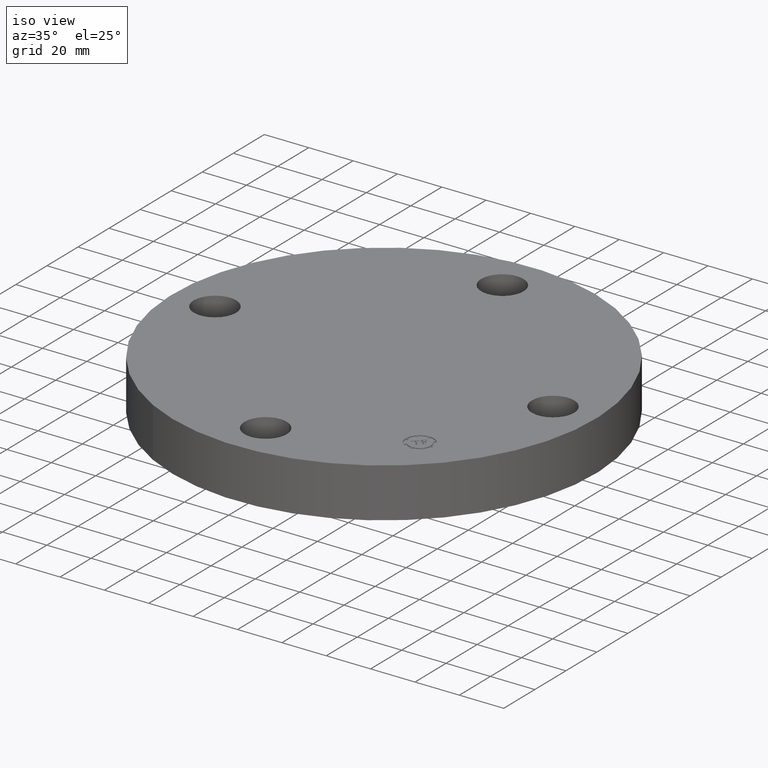
[diagram: clean part render]
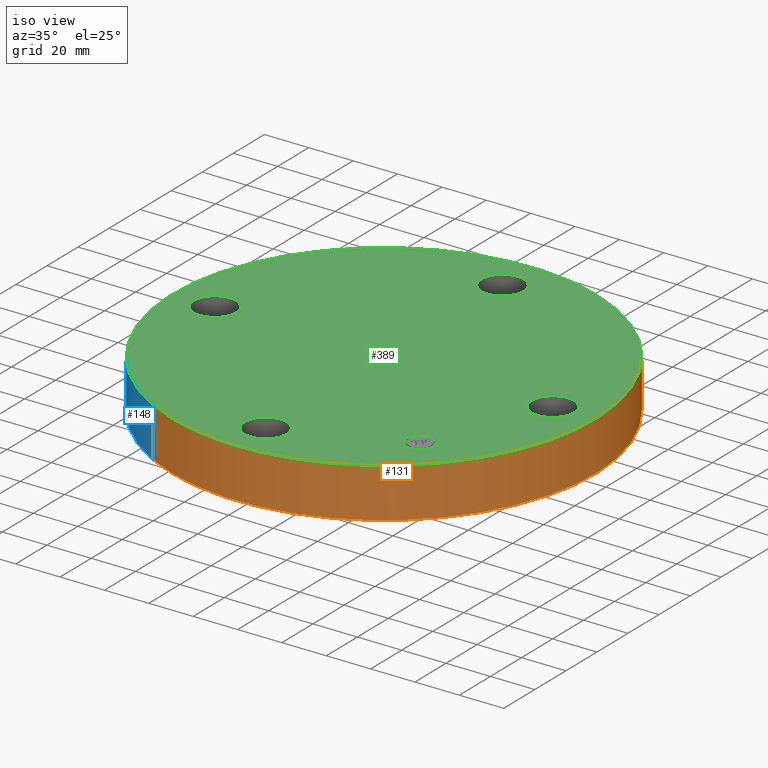
[diagram: same view with three faces highlighted in distinct colors, each labeled with its STEP entity id]
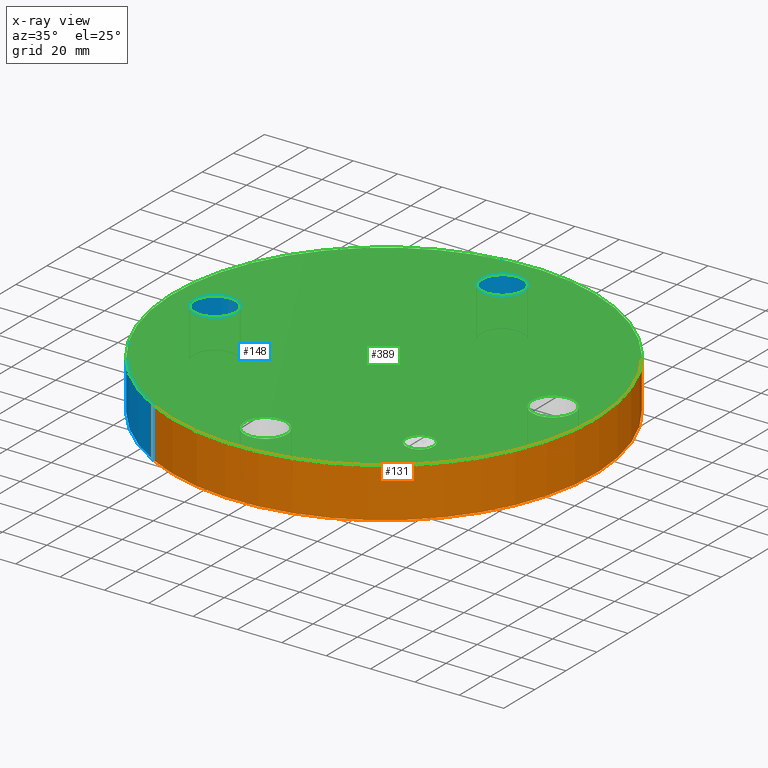
[diagram: x-ray of the same camera — body ghosted, the three highlighted faces saturated]
A machine part, iso view with three faces highlighted in distinct colors.
The next image is the same camera in x-ray (body ghosted, the three faces saturated) — at least one of them is partly hidden behind the body in this view.
Their STEP definitions:

[orange] entity #131 — the highlighted cylindrical surface (partial cylindrical patch) has radius 95.25 mm, axis along (0, 0, -1).
#95=AXIS2_PLACEMENT_3D('Cylinder Axis2P3D',#92,#93,#94) ;
#99=AXIS2_PLACEMENT_3D('Circle Axis2P3D',#97,#98,$) ;
#115=AXIS2_PLACEMENT_3D('Circle Axis2P3D',#113,#114,$) ;
#92=CARTESIAN_POINT('Axis2P3D Location',(0.,0.,0.440000000002)) ;
#97=CARTESIAN_POINT('Axis2P3D Location',(0.,0.,4.19611851827E-016)) ;
#101=CARTESIAN_POINT('Vertex',(1.79784576977,3.2909346071,4.19611851827E-016)) ;
#103=CARTESIAN_POINT('Vertex',(-1.79784576977,-3.2909346071,4.19611851827E-016)) ;
#106=CARTESIAN_POINT('Line Origine',(1.79784576977,3.2909346071,0.440000000002)) ;
#110=CARTESIAN_POINT('Vertex',(1.79784576977,3.2909346071,0.880000000004)) ;
#113=CARTESIAN_POINT('Axis2P3D Location',(0.,0.,0.880000000004)) ;
#117=CARTESIAN_POINT('Vertex',(-1.79784576977,-3.2909346071,0.880000000004)) ;
#120=CARTESIAN_POINT('Line Origine',(-1.79784576977,-3.2909346071,0.440000000002)) ;
#93=DIRECTION('Axis2P3D Direction',(0.,0.,-0.0393700787402)) ;
#94=DIRECTION('Axis2P3D XDirection',(-0.0188750212049,-0.0345504945626,0.)) ;
#98=DIRECTION('Axis2P3D Direction',(0.,0.,-0.0393700787402)) ;
#107=DIRECTION('Vector Direction',(0.,0.,-0.0393700787402)) ;
#114=DIRECTION('Axis2P3D Direction',(0.,0.,-0.0393700787402)) ;
#121=DIRECTION('Vector Direction',(0.,0.,-0.0393700787402)) ;
#108=VECTOR('Line Direction',#107,0.0393700787402) ;
#122=VECTOR('Line Direction',#121,0.0393700787402) ;
#126=ORIENTED_EDGE('',*,*,#105,.F.) ;
#127=ORIENTED_EDGE('',*,*,#112,.T.) ;
#128=ORIENTED_EDGE('',*,*,#119,.T.) ;
#129=ORIENTED_EDGE('',*,*,#124,.F.) ;
#131=ADVANCED_FACE('PartBody',(#130),#96,.T.) ;
#100=CIRCLE('generated circle',#99,3.75000000002) ;
#116=CIRCLE('generated circle',#115,3.75000000002) ;
#96=CYLINDRICAL_SURFACE('generated cylinder',#95,3.75000000002) ;
#105=EDGE_CURVE('',#102,#104,#100,.T.) ;
#112=EDGE_CURVE('',#102,#111,#109,.F.) ;
#119=EDGE_CURVE('',#111,#118,#116,.T.) ;
#124=EDGE_CURVE('',#104,#118,#123,.F.) ;
#125=EDGE_LOOP('',(#126,#127,#128,#129)) ;
#130=FACE_OUTER_BOUND('',#125,.T.) ;
#109=LINE('Line',#106,#108) ;
#123=LINE('Line',#120,#122) ;
#102=VERTEX_POINT('',#101) ;
#104=VERTEX_POINT('',#103) ;
#111=VERTEX_POINT('',#110) ;
#118=VERTEX_POINT('',#117) ;

[blue] entity #148 — the highlighted cylindrical surface (partial cylindrical patch) has radius 95.25 mm, axis along (0, 0, -1).
#95=AXIS2_PLACEMENT_3D('Cylinder Axis2P3D',#92,#93,#94) ;
#134=AXIS2_PLACEMENT_3D('Circle Axis2P3D',#132,#133,$) ;
#139=AXIS2_PLACEMENT_3D('Circle Axis2P3D',#137,#138,$) ;
#92=CARTESIAN_POINT('Axis2P3D Location',(0.,0.,0.440000000002)) ;
#101=CARTESIAN_POINT('Vertex',(1.79784576977,3.2909346071,4.19611851827E-016)) ;
#103=CARTESIAN_POINT('Vertex',(-1.79784576977,-3.2909346071,4.19611851827E-016)) ;
#106=CARTESIAN_POINT('Line Origine',(1.79784576977,3.2909346071,0.440000000002)) ;
#110=CARTESIAN_POINT('Vertex',(1.79784576977,3.2909346071,0.880000000004)) ;
#117=CARTESIAN_POINT('Vertex',(-1.79784576977,-3.2909346071,0.880000000004)) ;
#120=CARTESIAN_POINT('Line Origine',(-1.79784576977,-3.2909346071,0.440000000002)) ;
#132=CARTESIAN_POINT('Axis2P3D Location',(0.,0.,4.19611851827E-016)) ;
#137=CARTESIAN_POINT('Axis2P3D Location',(0.,0.,0.880000000004)) ;
#93=DIRECTION('Axis2P3D Direction',(0.,0.,-0.0393700787402)) ;
#94=DIRECTION('Axis2P3D XDirection',(-0.0188750212049,-0.0345504945626,0.)) ;
#107=DIRECTION('Vector Direction',(0.,0.,-0.0393700787402)) ;
#121=DIRECTION('Vector Direction',(0.,0.,-0.0393700787402)) ;
#133=DIRECTION('Axis2P3D Direction',(0.,0.,-0.0393700787402)) ;
#138=DIRECTION('Axis2P3D Direction',(0.,0.,-0.0393700787402)) ;
#108=VECTOR('Line Direction',#107,0.0393700787402) ;
#122=VECTOR('Line Direction',#121,0.0393700787402) ;
#143=ORIENTED_EDGE('',*,*,#136,.F.) ;
#144=ORIENTED_EDGE('',*,*,#124,.T.) ;
#145=ORIENTED_EDGE('',*,*,#141,.T.) ;
#146=ORIENTED_EDGE('',*,*,#112,.F.) ;
#148=ADVANCED_FACE('PartBody',(#147),#96,.T.) ;
#135=CIRCLE('generated circle',#134,3.75000000002) ;
#140=CIRCLE('generated circle',#139,3.75000000002) ;
#96=CYLINDRICAL_SURFACE('generated cylinder',#95,3.75000000002) ;
#112=EDGE_CURVE('',#102,#111,#109,.F.) ;
#124=EDGE_CURVE('',#104,#118,#123,.F.) ;
#136=EDGE_CURVE('',#104,#102,#135,.T.) ;
#141=EDGE_CURVE('',#118,#111,#140,.T.) ;
#142=EDGE_LOOP('',(#143,#144,#145,#146)) ;
#147=FACE_OUTER_BOUND('',#142,.T.) ;
#109=LINE('Line',#106,#108) ;
#123=LINE('Line',#120,#122) ;
#102=VERTEX_POINT('',#101) ;
#104=VERTEX_POINT('',#103) ;
#111=VERTEX_POINT('',#110) ;
#118=VERTEX_POINT('',#117) ;

[green] entity #389 — the highlighted planar face has unit normal (0, 0, -1).
#65=AXIS2_PLACEMENT_3D('Circle Axis2P3D',#63,#64,$) ;
#82=AXIS2_PLACEMENT_3D('Circle Axis2P3D',#80,#81,$) ;
#115=AXIS2_PLACEMENT_3D('Circle Axis2P3D',#113,#114,$) ;
#139=AXIS2_PLACEMENT_3D('Circle Axis2P3D',#137,#138,$) ;
#238=AXIS2_PLACEMENT_3D('Circle Axis2P3D',#236,#237,$) ;
#250=AXIS2_PLACEMENT_3D('Circle Axis2P3D',#248,#249,$) ;
#281=AXIS2_PLACEMENT_3D('Circle Axis2P3D',#279,#280,$) ;
#293=AXIS2_PLACEMENT_3D('Circle Axis2P3D',#291,#292,$) ;
#324=AXIS2_PLACEMENT_3D('Circle Axis2P3D',#322,#323,$) ;
#336=AXIS2_PLACEMENT_3D('Circle Axis2P3D',#334,#335,$) ;
#349=AXIS2_PLACEMENT_3D('Plane Axis2P3D',#346,#347,#348) ;
#373=AXIS2_PLACEMENT_3D('Circle Axis2P3D',#371,#372,$) ;
#382=AXIS2_PLACEMENT_3D('Circle Axis2P3D',#380,#381,$) ;
#46=CARTESIAN_POINT('Vertex',(2.6709065393,0.179784576977,0.880000000004)) ;
#60=CARTESIAN_POINT('Vertex',(3.32909346072,-0.179784576977,0.880000000004)) ;
#63=CARTESIAN_POINT('Axis2P3D Location',(3.00000000001,0.,0.880000000004)) ;
#80=CARTESIAN_POINT('Axis2P3D Location',(3.00000000001,0.,0.880000000004)) ;
#110=CARTESIAN_POINT('Vertex',(1.79784576977,3.2909346071,0.880000000004)) ;
#113=CARTESIAN_POINT('Axis2P3D Location',(0.,0.,0.880000000004)) ;
#117=CARTESIAN_POINT('Vertex',(-1.79784576977,-3.2909346071,0.880000000004)) ;
#137=CARTESIAN_POINT('Axis2P3D Location',(0.,0.,0.880000000004)) ;
#226=CARTESIAN_POINT('Vertex',(-0.179784576977,2.6709065393,0.880000000004)) ;
#233=CARTESIAN_POINT('Vertex',(0.179784576977,3.32909346072,0.880000000004)) ;
#236=CARTESIAN_POINT('Axis2P3D Location',(-5.51091059619E-016,3.00000000001,0.880000000004)) ;
#248=CARTESIAN_POINT('Axis2P3D Location',(-5.51091059619E-016,3.00000000001,0.880000000004)) ;
#269=CARTESIAN_POINT('Vertex',(-2.6709065393,-0.179784576977,0.880000000004)) ;
#276=CARTESIAN_POINT('Vertex',(-3.32909346072,0.179784576977,0.880000000004)) ;
#279=CARTESIAN_POINT('Axis2P3D Location',(-3.00000000001,-3.67394039746E-016,0.880000000004)) ;
#291=CARTESIAN_POINT('Axis2P3D Location',(-3.00000000001,-3.67394039746E-016,0.880000000004)) ;
#312=CARTESIAN_POINT('Vertex',(0.179784576977,-2.6709065393,0.880000000004)) ;
#319=CARTESIAN_POINT('Vertex',(-0.179784576977,-3.32909346072,0.880000000004)) ;
#322=CARTESIAN_POINT('Axis2P3D Location',(-3.7578544923E-016,-3.00000000001,0.880000000004)) ;
#334=CARTESIAN_POINT('Axis2P3D Location',(-3.7578544923E-016,-3.00000000001,0.880000000004)) ;
#346=CARTESIAN_POINT('Axis2P3D Location',(0.,3.75000000002,0.880000000004)) ;
#371=CARTESIAN_POINT('Axis2P3D Location',(2.12132034357,-2.12132034357,0.880000000004)) ;
#375=CARTESIAN_POINT('Vertex',(2.29632927191,-1.94631141522,0.880000000004)) ;
#377=CARTESIAN_POINT('Vertex',(1.94631141522,-2.29632927191,0.880000000004)) ;
#380=CARTESIAN_POINT('Axis2P3D Location',(2.12132034357,-2.12132034357,0.880000000004)) ;
#64=DIRECTION('Axis2P3D Direction',(0.,-0.,-0.0393700787402)) ;
#81=DIRECTION('Axis2P3D Direction',(0.,-0.,-0.0393700787402)) ;
#114=DIRECTION('Axis2P3D Direction',(0.,0.,-0.0393700787402)) ;
#138=DIRECTION('Axis2P3D Direction',(0.,0.,-0.0393700787402)) ;
#237=DIRECTION('Axis2P3D Direction',(0.,0.,-0.0393700787402)) ;
#249=DIRECTION('Axis2P3D Direction',(0.,0.,-0.0393700787402)) ;
#280=DIRECTION('Axis2P3D Direction',(-0.,0.,-0.0393700787402)) ;
#292=DIRECTION('Axis2P3D Direction',(-0.,0.,-0.0393700787402)) ;
#323=DIRECTION('Axis2P3D Direction',(0.,-0.,-0.0393700787402)) ;
#335=DIRECTION('Axis2P3D Direction',(0.,-0.,-0.0393700787402)) ;
#347=DIRECTION('Axis2P3D Direction',(0.,0.,-0.0393700787402)) ;
#348=DIRECTION('Axis2P3D XDirection',(0.0393700787402,0.,0.)) ;
#372=DIRECTION('Axis2P3D Direction',(0.,0.,-0.0393700787402)) ;
#381=DIRECTION('Axis2P3D Direction',(0.,0.,-0.0393700787402)) ;
#352=ORIENTED_EDGE('',*,*,#119,.F.) ;
#353=ORIENTED_EDGE('',*,*,#141,.F.) ;
#356=ORIENTED_EDGE('',*,*,#67,.T.) ;
#357=ORIENTED_EDGE('',*,*,#84,.T.) ;
#360=ORIENTED_EDGE('',*,*,#338,.T.) ;
#361=ORIENTED_EDGE('',*,*,#326,.T.) ;
#364=ORIENTED_EDGE('',*,*,#295,.T.) ;
#365=ORIENTED_EDGE('',*,*,#283,.T.) ;
#368=ORIENTED_EDGE('',*,*,#252,.T.) ;
#369=ORIENTED_EDGE('',*,*,#240,.T.) ;
#386=ORIENTED_EDGE('',*,*,#379,.T.) ;
#387=ORIENTED_EDGE('',*,*,#384,.T.) ;
#358=FACE_BOUND('',#355,.T.) ;
#362=FACE_BOUND('',#359,.T.) ;
#366=FACE_BOUND('',#363,.T.) ;
#370=FACE_BOUND('',#367,.T.) ;
#388=FACE_BOUND('',#385,.T.) ;
#389=ADVANCED_FACE('PartBody',(#354,#358,#362,#366,#370,#388),#350,.F.) ;
#66=CIRCLE('generated circle',#65,0.375000000002) ;
#83=CIRCLE('generated circle',#82,0.375000000002) ;
#116=CIRCLE('generated circle',#115,3.75000000002) ;
#140=CIRCLE('generated circle',#139,3.75000000002) ;
#239=CIRCLE('generated circle',#238,0.375000000002) ;
#251=CIRCLE('generated circle',#250,0.375000000002) ;
#282=CIRCLE('generated circle',#281,0.375000000001) ;
#294=CIRCLE('generated circle',#293,0.375000000001) ;
#325=CIRCLE('generated circle',#324,0.375000000002) ;
#337=CIRCLE('generated circle',#336,0.375000000002) ;
#374=CIRCLE('generated circle',#373,0.247500000001) ;
#383=CIRCLE('generated circle',#382,0.247500000001) ;
#67=EDGE_CURVE('',#47,#61,#66,.T.) ;
#84=EDGE_CURVE('',#61,#47,#83,.T.) ;
#119=EDGE_CURVE('',#111,#118,#116,.T.) ;
#141=EDGE_CURVE('',#118,#111,#140,.T.) ;
#240=EDGE_CURVE('',#227,#234,#239,.T.) ;
#252=EDGE_CURVE('',#234,#227,#251,.T.) ;
#283=EDGE_CURVE('',#270,#277,#282,.T.) ;
#295=EDGE_CURVE('',#277,#270,#294,.T.) ;
#326=EDGE_CURVE('',#313,#320,#325,.T.) ;
#338=EDGE_CURVE('',#320,#313,#337,.T.) ;
#379=EDGE_CURVE('',#376,#378,#374,.T.) ;
#384=EDGE_CURVE('',#378,#376,#383,.T.) ;
#351=EDGE_LOOP('',(#352,#353)) ;
#355=EDGE_LOOP('',(#356,#357)) ;
#359=EDGE_LOOP('',(#360,#361)) ;
#363=EDGE_LOOP('',(#364,#365)) ;
#367=EDGE_LOOP('',(#368,#369)) ;
#385=EDGE_LOOP('',(#386,#387)) ;
#354=FACE_OUTER_BOUND('',#351,.T.) ;
#350=PLANE('',#349) ;
#47=VERTEX_POINT('',#46) ;
#61=VERTEX_POINT('',#60) ;
#111=VERTEX_POINT('',#110) ;
#118=VERTEX_POINT('',#117) ;
#227=VERTEX_POINT('',#226) ;
#234=VERTEX_POINT('',#233) ;
#270=VERTEX_POINT('',#269) ;
#277=VERTEX_POINT('',#276) ;
#313=VERTEX_POINT('',#312) ;
#320=VERTEX_POINT('',#319) ;
#376=VERTEX_POINT('',#375) ;
#378=VERTEX_POINT('',#377) ;